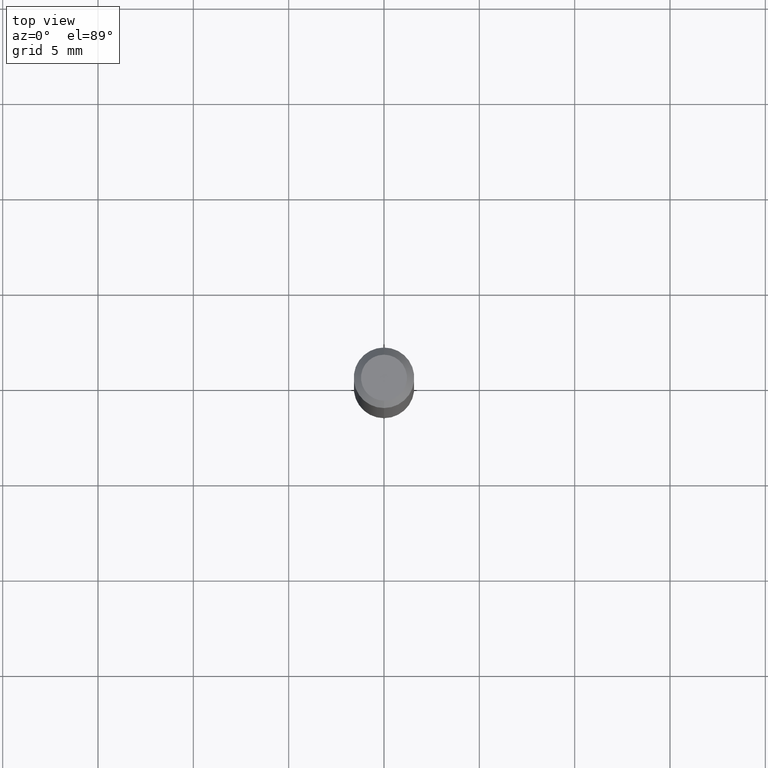
[diagram: clean part render]
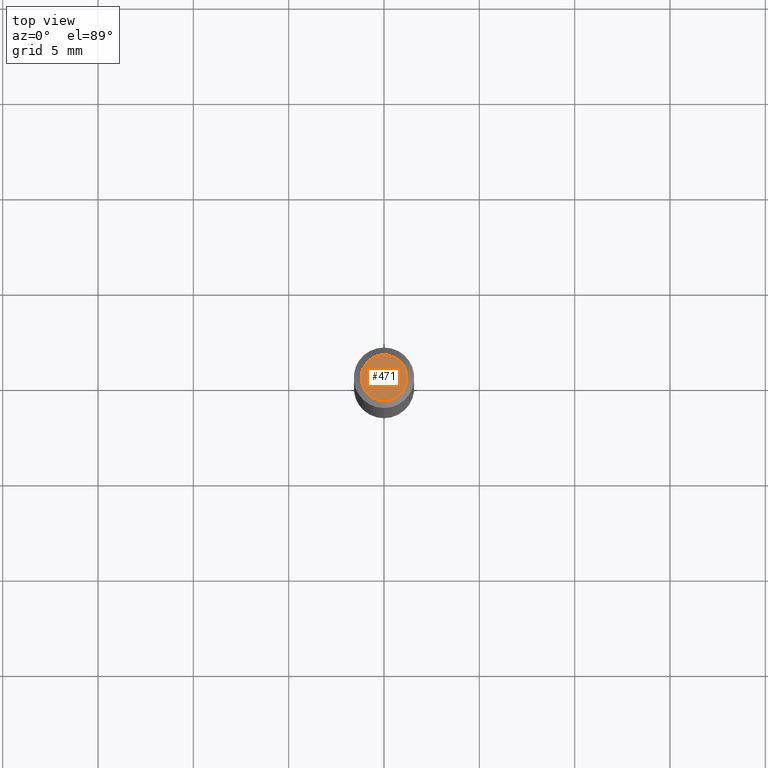
[diagram: same view with one face highlighted and labeled with its STEP entity id]
A machine part, top view. The second image highlights one B-rep face of the part: STEP entity #471.
In plain terms, the highlighted planar face has unit normal (0, -0, -1).
Its self-contained STEP definition (entity closure, byte-faithful):
#7 = DIRECTION ( 'NONE',  ( 2.445707618412850893E-29, -3.491139346140710505E-15, -1.000000000000000000 ) ) ;
#18 = PLANE ( 'NONE',  #417 ) ;
#47 = CARTESIAN_POINT ( 'NONE',  ( 3.316907271900979054E-16, 0.04750000000000004219, -5.575146080993514890E-16 ) ) ;
#89 = CARTESIAN_POINT ( 'NONE',  ( -3.773273898774342241E-16, -0.04750000000000004219, -6.175418593736515733E-16 ) ) ;
#108 = ORIENTED_EDGE ( 'NONE', *, *, #231, .T. ) ;
#110 = VERTEX_POINT ( 'NONE', #89 ) ;
#126 = DIRECTION ( 'NONE',  ( 6.982962677686265922E-15, 1.000000000000000000, -3.491139346140710505E-15 ) ) ;
#128 = EDGE_CURVE ( 'NONE', #110, #506, #373, .T. ) ;
#131 = FACE_OUTER_BOUND ( 'NONE', #344, .T. ) ;
#151 = DIRECTION ( 'NONE',  ( -6.982962677686265133E-15, -1.000000000000000000, 3.491139346140709322E-15 ) ) ;
#152 = AXIS2_PLACEMENT_3D ( 'NONE', #485, #239, #342 ) ;
#195 = AXIS2_PLACEMENT_3D ( 'NONE', #434, #394, #151 ) ;
#231 = EDGE_CURVE ( 'NONE', #506, #110, #491, .T. ) ;
#239 = DIRECTION ( 'NONE',  ( -2.445707618412851174E-29, 3.491139346140710505E-15, 1.000000000000000000 ) ) ;
#313 = CARTESIAN_POINT ( 'NONE',  ( 3.840629472727450339E-16, 0.04750000000000004219, -9.492000972570193079E-16 ) ) ;
#342 = DIRECTION ( 'NONE',  ( -6.982962677686265133E-15, -1.000000000000000000, 3.491139346140709322E-15 ) ) ;
#344 = EDGE_LOOP ( 'NONE', ( #108, #400 ) ) ;
#373 = CIRCLE ( 'NONE', #152, 0.04750000000000004219 ) ;
#394 = DIRECTION ( 'NONE',  ( -2.445707618412851174E-29, 3.491139346140710505E-15, 1.000000000000000000 ) ) ;
#400 = ORIENTED_EDGE ( 'NONE', *, *, #128, .T. ) ;
#417 = AXIS2_PLACEMENT_3D ( 'NONE', #47, #7, #126 ) ;
#434 = CARTESIAN_POINT ( 'NONE',  ( 1.915896369709344109E-44, -2.734857245021408663E-30, -7.833709783153354406E-16 ) ) ;
#471 = ADVANCED_FACE ( 'NONE', ( #131 ), #18, .F. ) ;
#485 = CARTESIAN_POINT ( 'NONE',  ( 1.915896369709344109E-44, -2.734857245021408663E-30, -7.833709783153354406E-16 ) ) ;
#491 = CIRCLE ( 'NONE', #195, 0.04750000000000004219 ) ;
#506 = VERTEX_POINT ( 'NONE', #313 ) ;